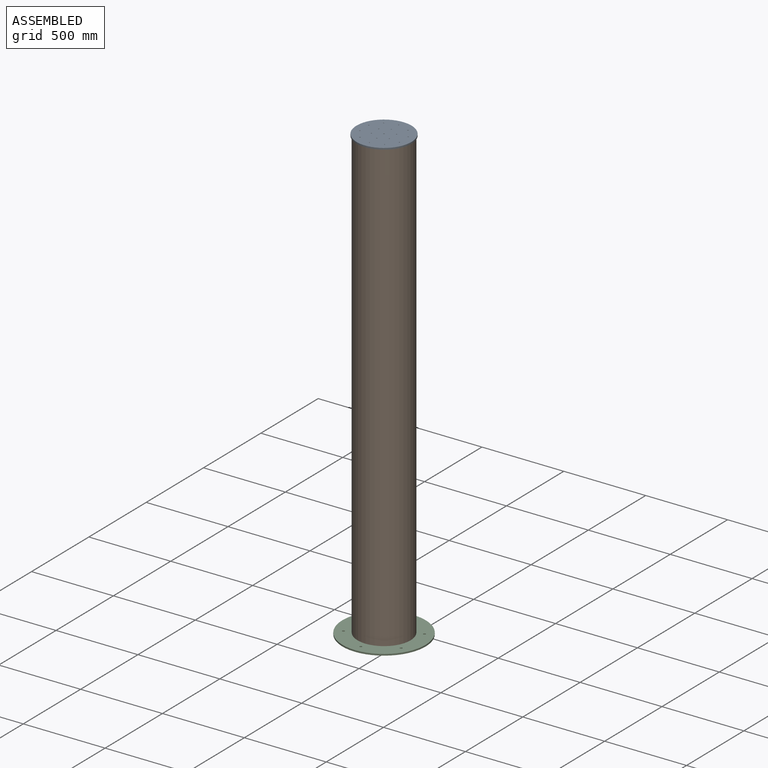
[diagram: assembled view]
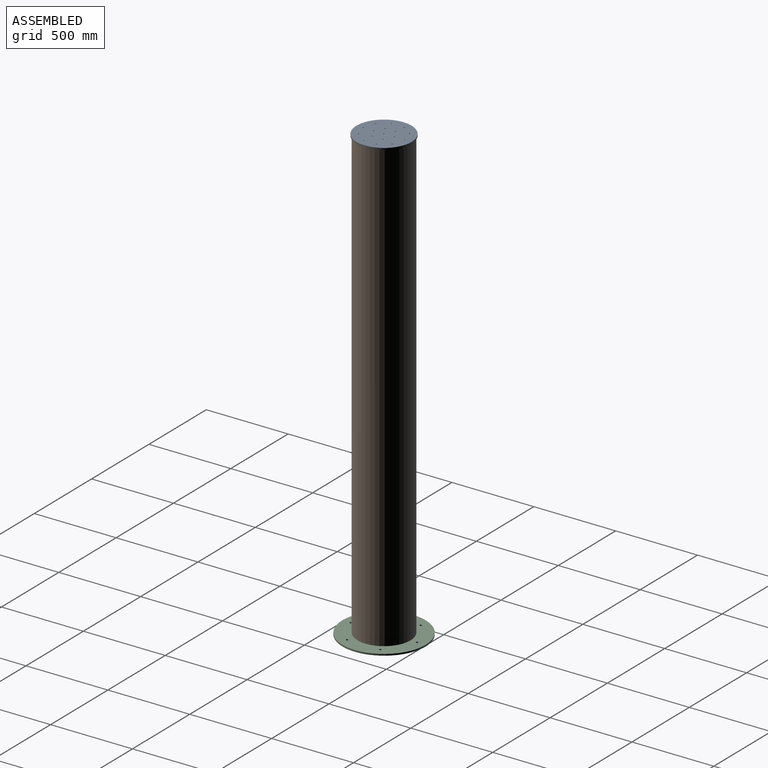
[diagram: assembled view, second angle]
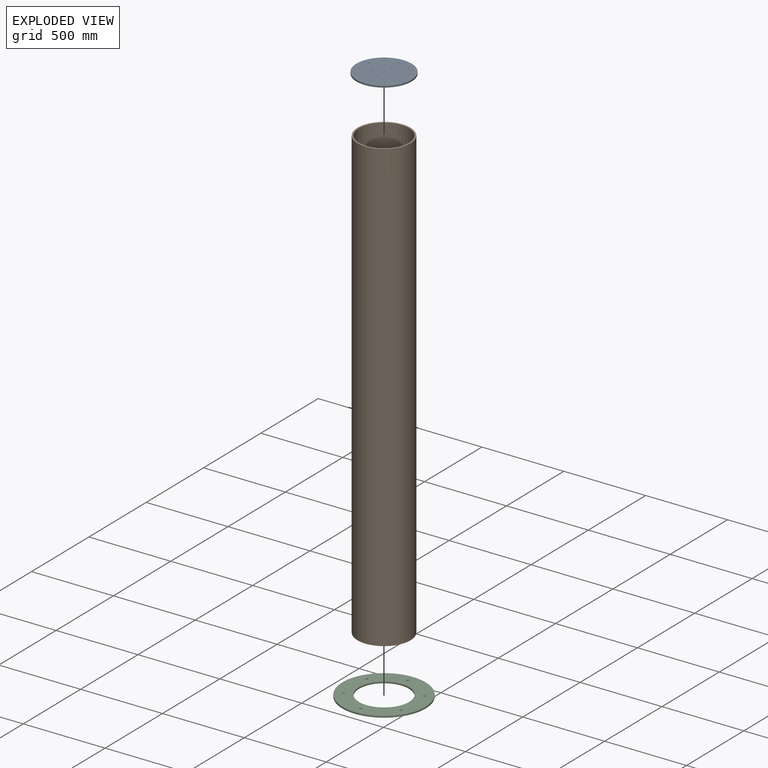
[diagram: exploded view]
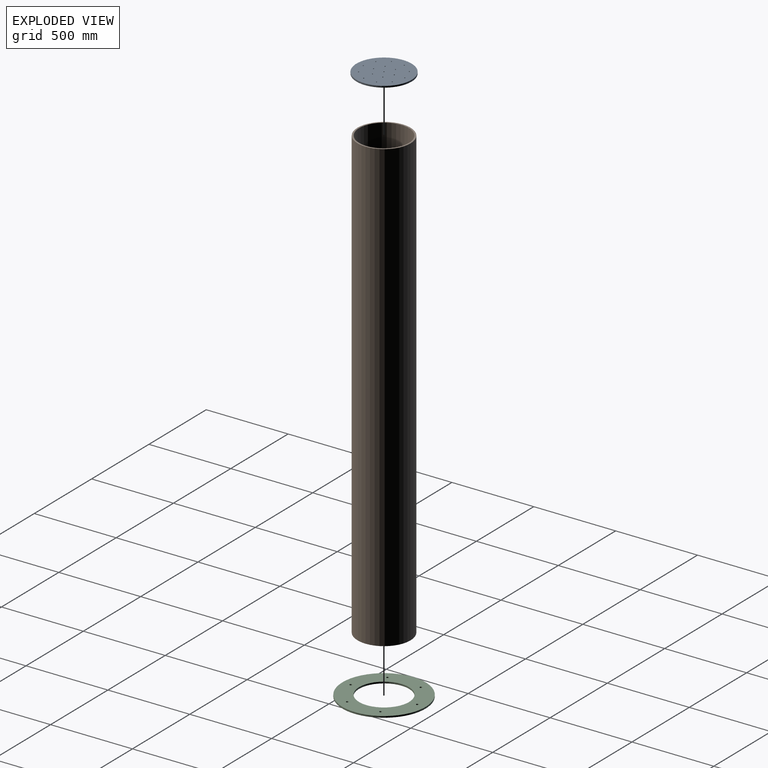
[diagram: exploded view, second angle]
ASSEMBLY  parts=3 mates=4
PART A: 20 faces, bbox 336.6x9.5x336.6 mm
  f0: cylinder r=3.17mm len=9.53mm, axis (0,1,0), area 190mm2, adj f18,f19
  f1: cylinder r=3.17mm len=9.53mm, axis (0,1,0), area 190mm2, adj f18,f19
  f2: cylinder r=3.17mm len=9.53mm, axis (0,1,0), area 190mm2, adj f18,f19
  f3: cylinder r=3.17mm len=9.53mm, axis (0,1,0), area 190mm2, adj f18,f19
  f4: cylinder r=3.17mm len=9.53mm, axis (0,1,0), area 190mm2, adj f18,f19
  f5: cylinder r=3.17mm len=9.53mm, axis (0,1,0), area 190mm2, adj f18,f19
  f6: cylinder r=3.17mm len=9.53mm, axis (0,1,0), area 190mm2, adj f18,f19
  f7: cylinder r=3.17mm len=9.53mm, axis (0,1,0), area 190mm2, adj f18,f19
  f8: cylinder r=3.17mm len=9.53mm, axis (0,1,0), area 190mm2, adj f18,f19
  f9: cylinder r=3.17mm len=9.53mm, axis (0,1,0), area 190mm2, adj f18,f19
  f10: cylinder r=3.17mm len=9.53mm, axis (0,1,0), area 190mm2, adj f18,f19
  f11: cylinder r=3.17mm len=9.53mm, axis (0,1,0), area 190mm2, adj f18,f19
  f12: cylinder r=3.17mm len=9.53mm, axis (0,1,0), area 190mm2, adj f18,f19
  f13: cylinder r=3.17mm len=9.53mm, axis (0,1,0), area 190mm2, adj f18,f19
  f14: cylinder r=3.17mm len=9.53mm, axis (0,1,0), area 190mm2, adj f18,f19
  f15: cylinder r=3.17mm len=9.53mm, axis (0,1,0), area 190mm2, adj f18,f19
  f16: cylinder r=3.17mm len=9.53mm, axis (0,1,0), area 190mm2, adj f18,f19
  f17: cylinder r=168.28mm len=336.55mm, axis (0,1,0), area 10070.8mm2, adj f18,f19
  f18: plane 336.55x336.55mm, normal (0,-1,0), area 88420.5mm2, adj f0,f1,f2,f3,f4,f5,f6,f7
  f19: plane 336.55x336.55mm, normal (0,1,0), area 88420.5mm2, adj f0,f1,f2,f3,f4,f5,f6,f7
PART B: 4 faces, bbox 323.9x2743.2x323.9 mm
  f0: cylinder r=152.4mm len=2743.2mm, axis (0,1,0), area 2626771.6mm2, adj f2,f3
  f1: cylinder r=161.93mm len=2743.2mm, axis (0,1,0), area 2790944.8mm2, adj f2,f3
  f2: plane 323.85x323.85mm, normal (0,-1,0), area 9405.8mm2, adj f0,f1
  f3: plane 323.85x323.85mm, normal (0,1,0), area 9405.8mm2, adj f0,f1
PART C: 10 faces, bbox 508x9.5x508 mm
  f0: cylinder r=6.99mm len=13.97mm, axis (0,1,0), area 418mm2, adj f8,f9
  f1: cylinder r=6.99mm len=13.97mm, axis (0,1,0), area 418mm2, adj f8,f9
  f2: cylinder r=6.99mm len=13.97mm, axis (0,1,0), area 418mm2, adj f8,f9
  f3: cylinder r=6.99mm len=13.97mm, axis (0,1,0), area 418mm2, adj f8,f9
  f4: cylinder r=6.99mm len=13.97mm, axis (0,1,0), area 418mm2, adj f8,f9
  f5: cylinder r=6.99mm len=13.97mm, axis (0,1,0), area 418mm2, adj f8,f9
  f6: cylinder r=153.03mm len=306.07mm, axis (0,1,0), area 9158.7mm2, adj f8,f9
  f7: cylinder r=254mm len=508mm, axis (0,1,0), area 15201.2mm2, adj f8,f9
  f8: plane 508x508mm, normal (0,-1,0), area 128188.1mm2, adj f0,f1,f2,f3,f4,f5,f6,f7
  f9: plane 508x508mm, normal (0,1,0), area 128188.1mm2, adj f0,f1,f2,f3,f4,f5,f6,f7
PLACE A rot(axis=(1,0,0),90deg) t=(-156.1,1727.25,2264.41)mm
PLACE B rot(axis=(1,0,0),90deg) t=(-156.1,1727.25,2254.88)mm
PLACE C rot(axis=(-1,0,0),90deg) t=(-156.1,1727.25,-497.84)mm
MATE cylindrical B.f1 <-> A.f17  axis (0,0,1) through (-156.1,1727.25,2254.88)mm
MATE fastened A.f17 <-> B.f1  axis (0,0,-1) through (-156.1,1727.25,2254.88)mm
MATE cylindrical C.f6 <-> B.f1  axis (0,0,-1) through (-156.1,1727.25,-493.08)mm
MATE fastened C.f7 <-> B.f1  axis (0,0,1) through (-156.1,1727.25,-488.32)mm
